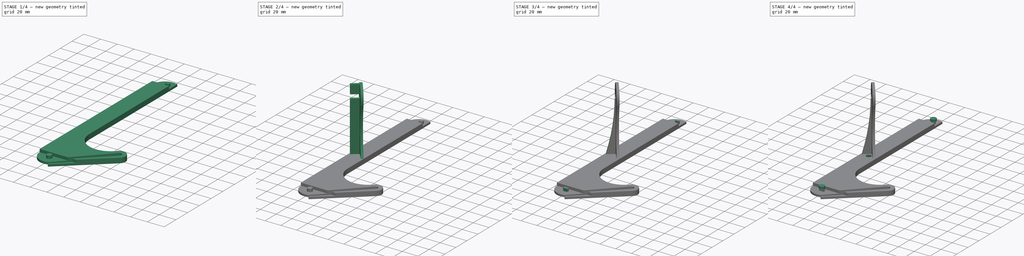
[diagram: build sequence overview — one tinted view per stage of 4, left to right]
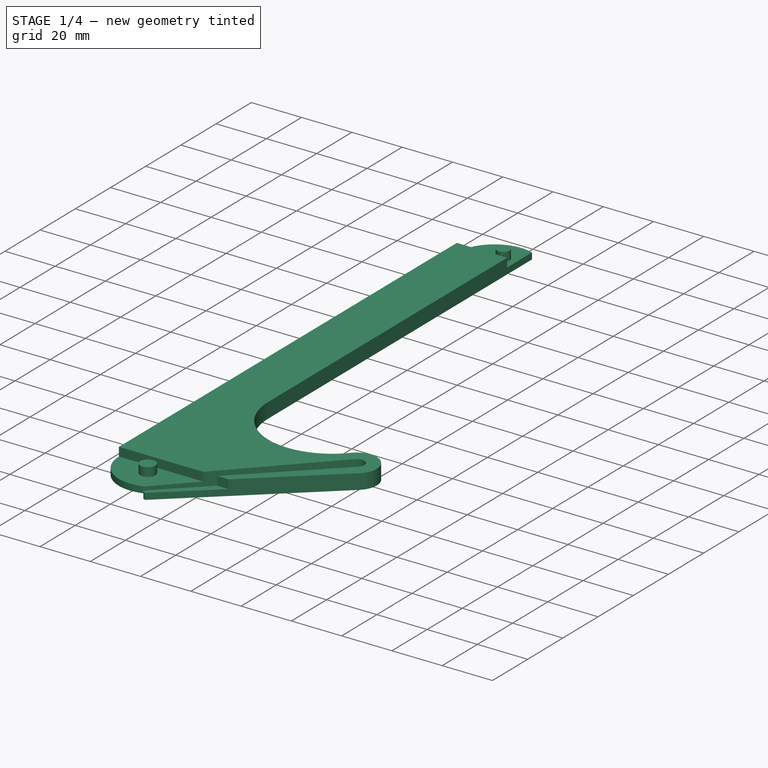
[diagram: stage 1 of 4 — iso view after this stage's code; geometry added in this stage tinted green]
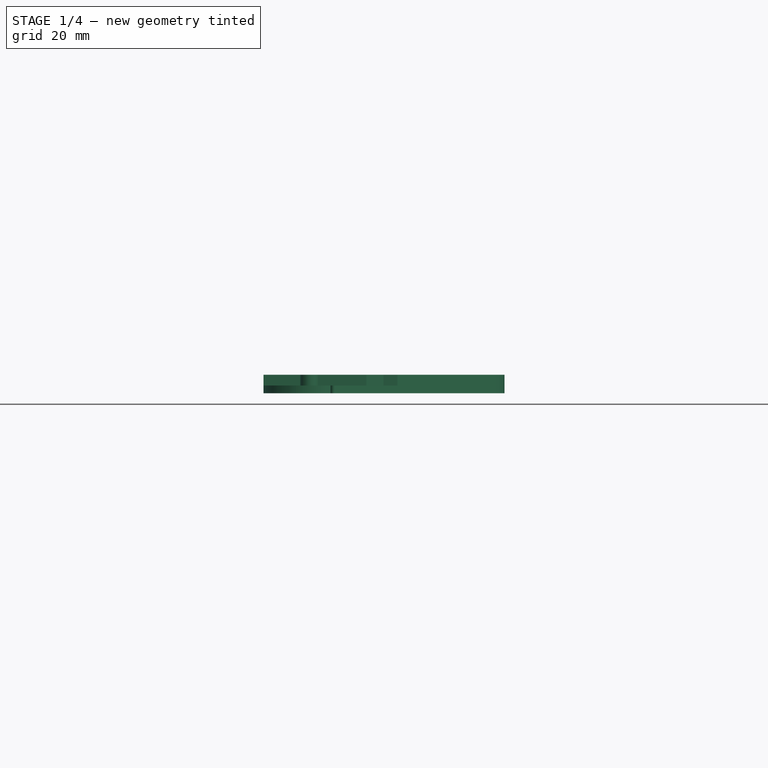
[diagram: stage 1 of 4 — front view after this stage's code; geometry added in this stage tinted green]
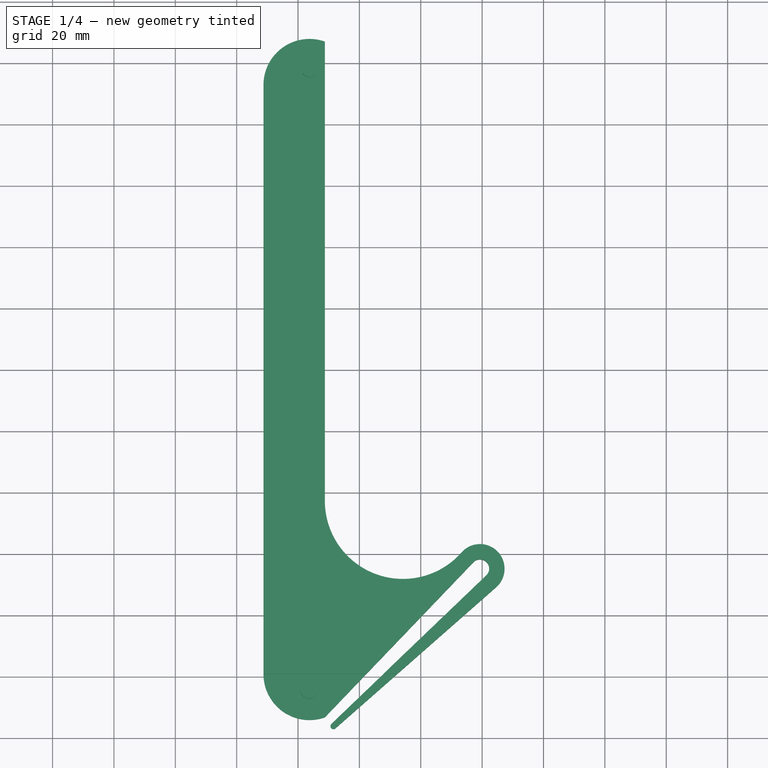
[diagram: stage 1 of 4 — top view after this stage's code; geometry added in this stage tinted green]
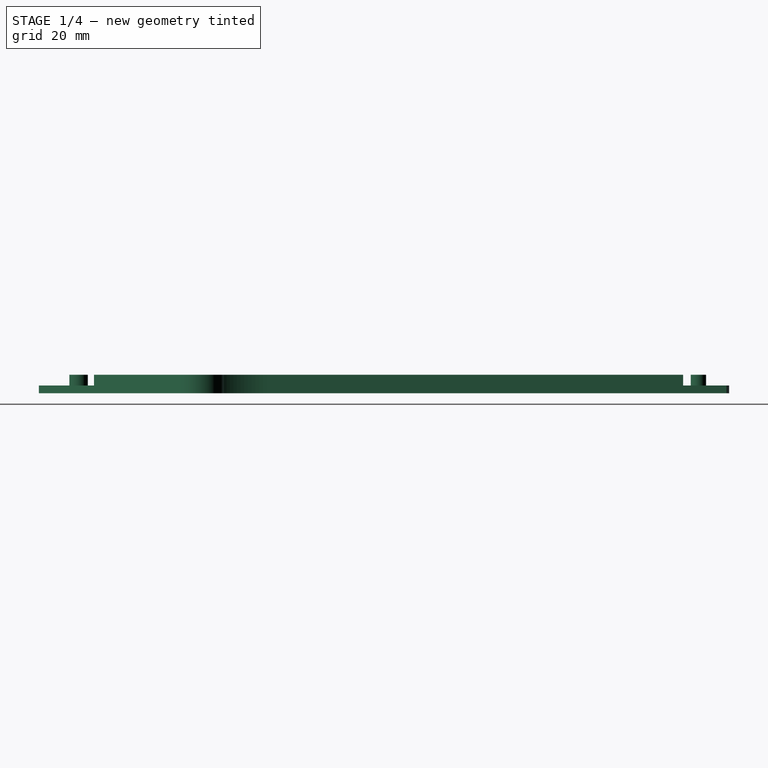
[diagram: stage 1 of 4 — right view after this stage's code; geometry added in this stage tinted green]
FCSTD DOCUMENT  (FreeCAD 0.16R6707 (Git))
Label: montant_avd
License: All rights reserved
LicenseURL: http://en.wikipedia.org/wiki/All_rights_reserved
objects: Sketcher::SketchObject×12, PartDesign::Pocket×8, PartDesign::Pad×4
note: 36 computed .brp shape members not serialized (recipe doc carries the construction recipe); baked Part::Feature solids carry a one-line shape summary decoded from their .brp

FEATURE [Sketcher::SketchObject] Sketch
  sketch-geometry (17):
    g0: LineSegment StartX=148.736 StartY=-99.0647 StartZ=0 EndX=148.736 EndY=92.9353 EndZ=0
    g1: LineSegment StartX=168.736 StartY=-113.207 StartZ=0 EndX=217.173 EndY=-62.6487 EndZ=0
    g2: LineSegment StartX=170.857 StartY=-115.328 StartZ=0 EndX=221.415 EndY=-66.8914 EndZ=0
    g3: LineSegment [constr] StartX=169.797 StartY=-114.268 StartZ=0 EndX=219.294 EndY=-64.77 EndZ=0
    g4: LineSegment [constr] StartX=217.173 StartY=-62.6487 StartZ=0 EndX=221.415 EndY=-66.8914 EndZ=0
    g5: ArcOfCircle CenterX=194.175 CenterY=-42.6963 CenterZ=0 NormalX=0 NormalY=0 NormalZ=1 Radius=25.4395 StartAngle=3.14159 EndAngle=5.56222
    g6: LineSegment [constr] StartX=168.736 StartY=-42.6964 StartZ=0 EndX=168.736 EndY=-113.207 EndZ=0
    g7: LineSegment StartX=172.272 StartY=-116.742 StartZ=0 EndX=224.575 EndY=-70.7794 EndZ=0
    g8: ArcOfCircle CenterX=219.294 CenterY=-64.77 CenterZ=0 NormalX=0 NormalY=0 NormalZ=1 Radius=3 StartAngle=5.49779 EndAngle=8.63938
    g9: LineSegment StartX=168.736 StartY=-42.6964 StartZ=0 EndX=168.736 EndY=107.077 EndZ=0
    g10: ArcOfCircle CenterX=163.736 CenterY=92.9353 CenterZ=0 NormalX=0 NormalY=0 NormalZ=1 Radius=15 StartAngle=1.23096 EndAngle=3.14159
    g11: LineSegment [constr] StartX=168.736 StartY=-113.207 StartZ=0 EndX=172.272 EndY=-116.742 EndZ=0
    g12: ArcOfCircle CenterX=171.564 CenterY=-116.035 CenterZ=0 NormalX=0 NormalY=0 NormalZ=1 Radius=1 StartAngle=2.35619 EndAngle=5.49779
    g13: ArcOfCircle CenterX=219.294 CenterY=-64.77 CenterZ=0 NormalX=0 NormalY=0 NormalZ=1 Radius=8 StartAngle=5.43335 EndAngle=8.70381
    g14: LineSegment [constr] StartX=148.736 StartY=92.9353 StartZ=0 EndX=168.736 EndY=92.9353 EndZ=0
    g15: LineSegment [constr] StartX=148.736 StartY=-99.0647 StartZ=0 EndX=168.736 EndY=-99.0647 EndZ=0
    g16: ArcOfCircle CenterX=163.736 CenterY=-99.0647 CenterZ=0 NormalX=0 NormalY=0 NormalZ=1 Radius=15 StartAngle=3.14159 EndAngle=5.05223
  constraints (51):
    c: Coincident(g2,g4)
    c: Coincident(g1,g4)
    c: Coincident(g1,g8)
    c: Coincident(g2,g8)
    c: Coincident(g1,g6)
    c: Coincident(g0,g10)
    c: Coincident(g9,g10)
    c: Parallel(g6,g0)
    c: Parallel(g9,g0)
    c: Parallel(g0,g-2)
    c: Symmetric(g2,g1,g3)
    c: Symmetric(g1,g2,g3)
    c: PointOnObject(g3,g4)
    c: Radius(g8) = 3
    c: Coincident(g7,g11)
    c: Coincident(g1,g11)
    c: Distance(g2,g1) = 3
    c: PointOnObject(g2,g11)
    c: Coincident(g12,g7)
    c: Coincident(g12,g2)
    c: PointOnObject(g12,g11)
    c: Radius(g12) = 1
    c: Coincident(g5,g6)
    c: Coincident(g5,g9)
    c: Coincident(g13,g3)
    c: Coincident(g13,g5)
    c: Coincident(g13,g7)
    c: Radius(g13) = 8
    c: PointOnObject(g8,g4)
    c: Angle(g10,g9) = 1.5708
    c: PointOnObject(g3,g11)
    c: Distance(g3) = 70
    c: Angle(g3,g6) = 0.785398
    c: Coincident(g0,g14)
    c: PointOnObject(g14,g9)
    c: PointOnObject(g10,g14)
    c: Angle(g14,g9) = 1.5708
    c: Distance(g14) = 20
    c: Coincident(g0,g15)
    c: Distance(g15) = 20
    c: Coincident(g16,g0)
    c: Coincident(g16,g1)
    c: PointOnObject(g16,g15)
    c: DistanceX(g16,g15) = 5
    c: DistanceX(g10,g14) = 5
    c: PointOnObject(g15,g6)
    c: Tangent(g7,g13)
    c: Tangent(g13,g5)
    c: Tangent(g5,g9)
    c: Symmetric(g5,g7,g3)
    c: DistanceY(g0,g0) = 192
FEATURE [PartDesign::Pad] Pad
  Length = 6
  Length2 = 100
  Sketch = -> Sketch
  Type = 0
FEATURE [Sketcher::SketchObject] Sketch001
  ExternalGeometry = -> [Pad]
  Placement = pos=(0,0,6) rot=(0,0,1;0rad)
  Support = -> Pad [Face13]
  sketch-geometry (5):
    g0: Circle CenterX=163.736 CenterY=97.9353 CenterZ=0 NormalX=0 NormalY=0 NormalZ=1 Radius=2.5
    g1: LineSegment StartX=143.825 StartY=111.204 StartZ=0 EndX=175.168 EndY=111.204 EndZ=0
    g2: LineSegment StartX=175.168 StartY=111.204 StartZ=0 EndX=175.168 EndY=92.9353 EndZ=0
    g3: LineSegment StartX=175.168 StartY=92.9353 StartZ=0 EndX=143.825 EndY=92.9353 EndZ=0
    g4: LineSegment StartX=143.825 StartY=92.9353 StartZ=0 EndX=143.825 EndY=111.204 EndZ=0
  constraints (12):
    c: Radius(g0) = 2.5
    c: Coincident(g1,g2)
    c: Coincident(g2,g3)
    c: Coincident(g3,g4)
    c: Coincident(g4,g1)
    c: Horizontal(g1)
    c: Horizontal(g3)
    c: Vertical(g2)
    c: Vertical(g4)
    c: PointOnObject(g-3,g3)
    c: DistanceY(g-3,g0) = 5
    c: DistanceX(g0,g-4) = 5
FEATURE [PartDesign::Pocket] Pocket
  Length = 3.5
  Sketch = -> Sketch001
  Type = 0
FEATURE [Sketcher::SketchObject] Sketch013
  ExternalGeometry = -> [Pocket]
  Placement = pos=(0,0,6) rot=(0,0,1;0rad)
  Support = -> Pocket [Face4]
  sketch-geometry (5):
    g0: LineSegment StartX=145.277 StartY=-99.0647 StartZ=0 EndX=193.441 EndY=-99.0647 EndZ=0
    g1: LineSegment StartX=193.441 StartY=-99.0647 StartZ=0 EndX=193.441 EndY=-118.391 EndZ=0
    g2: LineSegment StartX=193.441 StartY=-118.391 StartZ=0 EndX=145.277 EndY=-118.391 EndZ=0
    g3: LineSegment StartX=145.277 StartY=-118.391 StartZ=0 EndX=145.277 EndY=-99.0647 EndZ=0
    g4: Circle CenterX=163.736 CenterY=-104.065 CenterZ=0 NormalX=0 NormalY=0 NormalZ=1 Radius=3.0214
  constraints (11):
    c: Coincident(g0,g1)
    c: Coincident(g1,g2)
    c: Coincident(g2,g3)
    c: Coincident(g3,g0)
    c: Horizontal(g0)
    c: Horizontal(g2)
    c: Vertical(g1)
    c: Vertical(g3)
    c: PointOnObject(g-3,g0)
    c: DistanceY(g4,g-3) = 5
    c: DistanceX(g4,g-3) = 5
FEATURE [PartDesign::Pocket] Pocket008
  Length = 3.5
  Sketch = -> Sketch013
  Type = 0
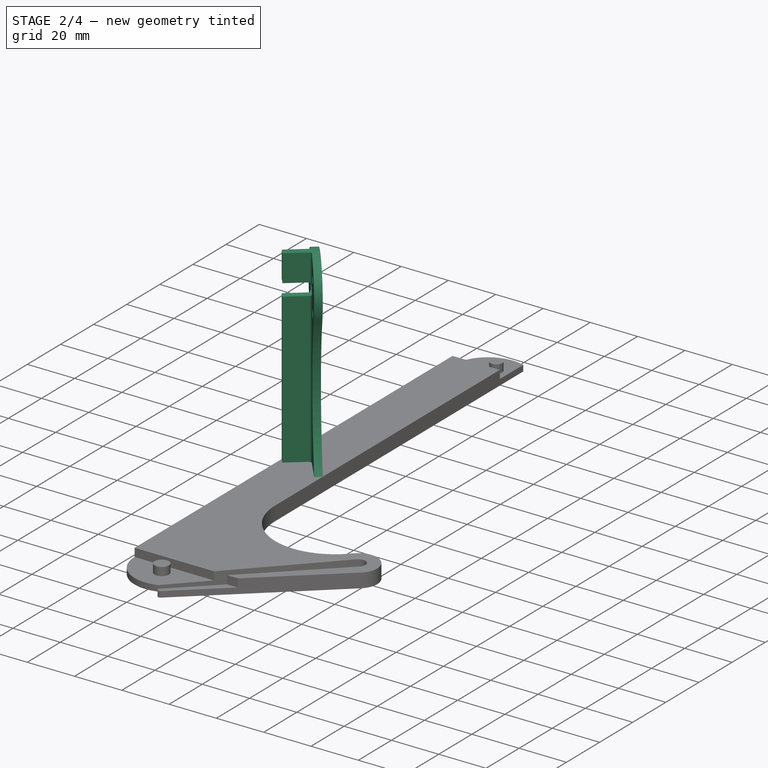
[diagram: stage 2 of 4 — iso view after this stage's code; geometry added in this stage tinted green]
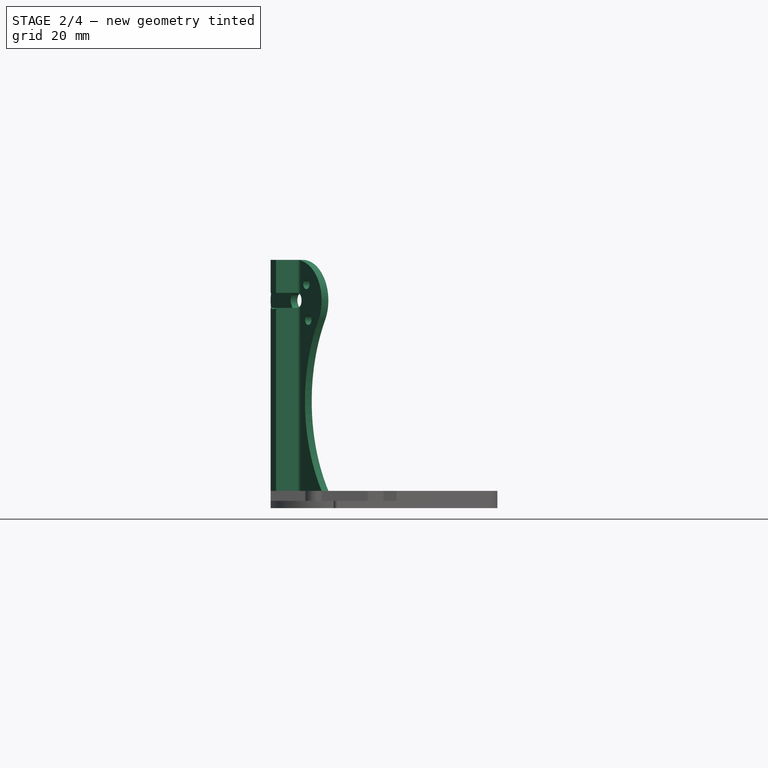
[diagram: stage 2 of 4 — front view after this stage's code; geometry added in this stage tinted green]
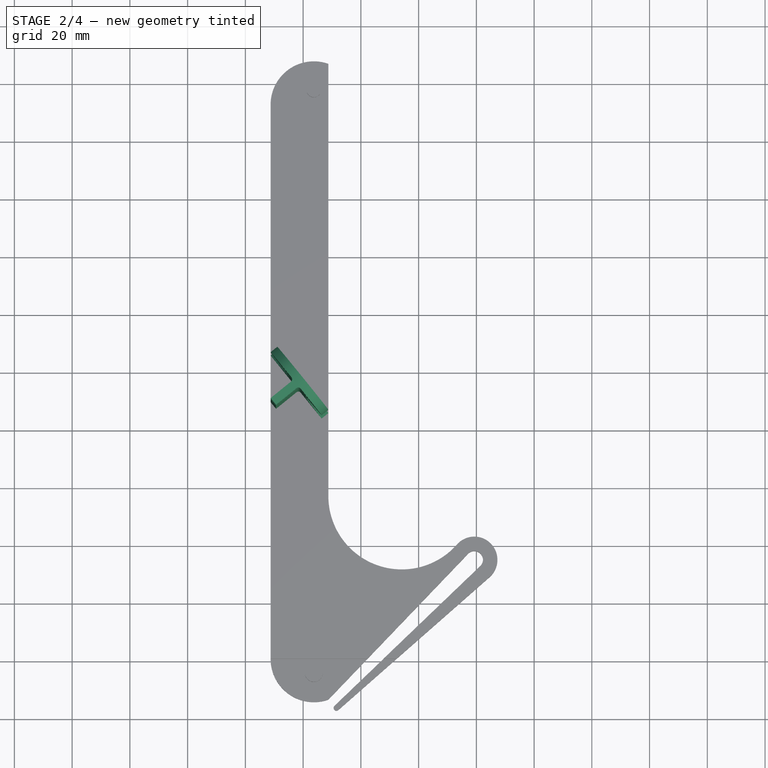
[diagram: stage 2 of 4 — top view after this stage's code; geometry added in this stage tinted green]
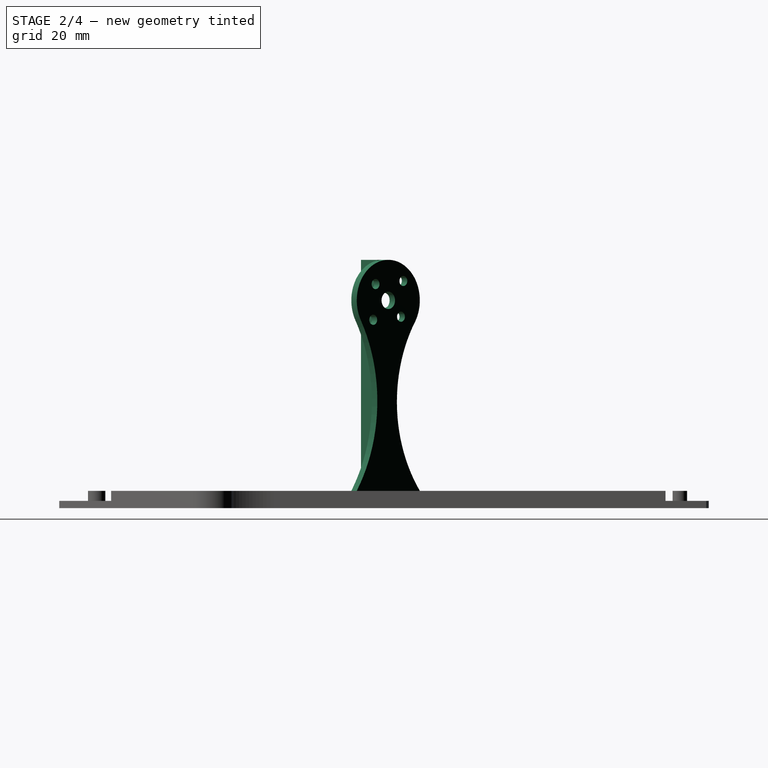
[diagram: stage 2 of 4 — right view after this stage's code; geometry added in this stage tinted green]
FEATURE [Sketcher::SketchObject] Sketch014
  ExternalGeometry = -> [Pocket008]
  Placement = pos=(0,0,6) rot=(0,0,1;0rad)
  Support = -> Pocket008 [Face4]
  sketch-geometry (11):
    g0: LineSegment StartX=148.736 StartY=5.96021 StartZ=0 EndX=155.997 EndY=-3.00921 EndZ=0
    g1: LineSegment StartX=151.068 StartY=7.84783 StartZ=0 EndX=168.736 EndY=-13.9772 EndZ=0
    g2: LineSegment StartX=148.736 StartY=5.96021 StartZ=0 EndX=151.068 EndY=7.84783 EndZ=0
    g3: LineSegment StartX=166.404 StartY=-15.8648 StartZ=0 EndX=168.736 EndY=-13.9772 EndZ=0
    g4: LineSegment [constr] StartX=148.736 StartY=-12.1039 StartZ=0 EndX=159.902 EndY=-3.06468 EndZ=0
    g5: LineSegment StartX=148.736 StartY=-10.174 StartZ=0 EndX=150.624 EndY=-12.5057 EndZ=0
    g6: LineSegment StartX=150.624 StartY=-12.5057 StartZ=0 EndX=157.737 EndY=-6.74736 EndZ=0
    g7: LineSegment StartX=148.736 StartY=-10.174 StartZ=0 EndX=155.849 EndY=-4.41565 EndZ=0
    g8: LineSegment StartX=159.143 StartY=-6.89539 StartZ=0 EndX=166.404 EndY=-15.8648 EndZ=0
    g9: ArcOfCircle CenterX=158.366 CenterY=-7.5246 CenterZ=0 NormalX=0 NormalY=0 NormalZ=1 Radius=1 StartAngle=0.680533 EndAngle=2.25133
    g10: ArcOfCircle CenterX=155.22 CenterY=-3.63841 CenterZ=0 NormalX=0 NormalY=0 NormalZ=1 Radius=1 StartAngle=5.39292 EndAngle=6.96372
  constraints (28):
    c: Coincident(g2,g0)
    c: Coincident(g2,g1)
    c: Coincident(g3,g8)
    c: Coincident(g3,g1)
    c: PointOnObject(g4,g-3)
    c: PointOnObject(g0,g-3)
    c: PointOnObject(g1,g-4)
    c: Angle(g8,g4) = 1.5708
    c: Symmetric(g1,g1,g4)
    c: Angle(g3,g8) = 1.5708
    c: Distance(g3) = 3
    c: PointOnObject(g5,g-3)
    c: Coincident(g5,g6)
    c: Coincident(g5,g7)
    c: Symmetric(g5,g5,g4)
    c: Parallel(g7,g6)
    c: Distance(g5,g5) = 3
    c: Tangent(g0,g8)
    c: Tangent(g6,g9) = 1.5708
    c: Tangent(g8,g9) = 1.5708
    c: Tangent(g0,g10) = 1.5708
    c: Tangent(g7,g10) = -1.5708
    c: Symmetric(g6,g7,g4)
    c: Radius(g9) = 1
    c: Radius(g10) = 1
    c: PointOnObject(g4,g1)
    c: Symmetric(g0,g3,g4)
    c: DistanceY(g4,g-3) = 96
FEATURE [PartDesign::Pad] Pad001
  Length = 80
  Length2 = 100
  Sketch = -> Sketch014
  Type = 0
FEATURE [Sketcher::SketchObject] Sketch016
  ExternalGeometry = -> [Pad001]
  Placement = pos=(95.0977,76.9856,0) rot=(0.319639,0.670012,0.670012;2.52284rad)
  Support = -> Pad001 [Face31]
  sketch-geometry (8):
    g0: ArcOfCircle CenterX=-102.993 CenterY=71.9599 CenterZ=0 NormalX=0 NormalY=0 NormalZ=1 Radius=14.0401 StartAngle=5.76124 EndAngle=9.94673
    g1: ArcOfCircle CenterX=-47.5079 CenterY=36.8237 CenterZ=0 NormalX=0 NormalY=0 NormalZ=1 Radius=51.6509 StartAngle=2.56552 EndAngle=3.78106
    g2: ArcOfCircle CenterX=-165.033 CenterY=37.0315 CenterZ=0 NormalX=0 NormalY=0 NormalZ=1 Radius=57.1569 StartAngle=5.70928 EndAngle=6.7937
    g3: LineSegment StartX=-117.033 StartY=6 StartZ=0 EndX=-129.947 EndY=10.191 EndZ=0
    g4: LineSegment StartX=-129.947 StartY=10.191 StartZ=0 EndX=-129.947 EndY=98.7164 EndZ=0
    g5: LineSegment StartX=-129.947 StartY=98.7164 StartZ=0 EndX=-69.304 EndY=98.7164 EndZ=0
    g6: LineSegment StartX=-69.304 StartY=98.7164 StartZ=0 EndX=-45.8669 EndY=9.8803 EndZ=0
    g7: LineSegment StartX=-45.8669 StartY=9.8803 StartZ=0 EndX=-88.9532 EndY=6 EndZ=0
  constraints (15):
    c: Coincident(g0,g1)
    c: Tangent(g0,g-5)
    c: Tangent(g0,g-4)
    c: Tangent(g0,g-3)
    c: Coincident(g0,g2)
    c: Coincident(g1,g7)
    c: Coincident(g1,g-3)
    c: Coincident(g5,g6)
    c: Coincident(g6,g7)
    c: Coincident(g4,g5)
    c: Coincident(g3,g4)
    c: Coincident(g2,g3)
    c: Coincident(g2,g-4)
    c: DistanceY(g0,g0) = 7
    c: DistanceY(g0,g0) = 7
FEATURE [PartDesign::Pocket] Pocket009
  Length = 3
  Sketch = -> Sketch016
  Type = 0
FEATURE [Sketcher::SketchObject] Sketch015
  ExternalGeometry = -> [Pocket009]
  Placement = pos=(95.0977,76.9856,0) rot=(0.319639,0.670012,0.670012;2.52284rad)
  Support = -> Pocket009 [Face34]
  sketch-geometry (9):
    g0: Circle CenterX=-102.993 CenterY=71.9599 CenterZ=0 NormalX=0 NormalY=0 NormalZ=1 Radius=3
    g1: Circle CenterX=-96.2758 CenterY=78.6774 CenterZ=0 NormalX=0 NormalY=0 NormalZ=1 Radius=1.75
    g2: Circle CenterX=-108.65 CenterY=77.6167 CenterZ=0 NormalX=0 NormalY=0 NormalZ=1 Radius=1.75
    g3: Circle CenterX=-109.711 CenterY=65.2424 CenterZ=0 NormalX=0 NormalY=0 NormalZ=1 Radius=1.75
    g4: Circle CenterX=-97.3365 CenterY=66.303 CenterZ=0 NormalX=0 NormalY=0 NormalZ=1 Radius=1.75
    g5: LineSegment [constr] StartX=-109.711 StartY=65.2424 StartZ=0 EndX=-96.2758 EndY=78.6774 EndZ=0
    g6: LineSegment [constr] StartX=-108.65 StartY=77.6167 StartZ=0 EndX=-97.3365 EndY=66.303 EndZ=0
    g7: LineSegment [constr] StartX=-117.033 StartY=71.9599 StartZ=0 EndX=-102.993 EndY=71.9599 EndZ=0
    g8: LineSegment [constr] StartX=-102.993 StartY=86 StartZ=0 EndX=-102.993 EndY=71.9599 EndZ=0
  constraints (24):
    c: Coincident(g6,g2)
    c: PointOnObject(g0,g6)
    c: PointOnObject(g0,g5)
    c: Coincident(g3,g5)
    c: Coincident(g6,g4)
    c: Coincident(g1,g5)
    c: Distance(g0,g3) = 9.5
    c: Distance(g4,g0) = 8
    c: Distance(g2,g0) = 8
    c: Distance(g1,g0) = 9.5
    c: Angle(g5,g6) = 1.5708
    c: Radius(g0) = 3
    c: Radius(g4) = 1.75
    c: Radius(g3) = 1.75
    c: Radius(g2) = 1.75
    c: Radius(g1) = 1.75
    c: Coincident(g-3,g0)
    c: Horizontal(g7)
    c: Vertical(g8)
    c: Coincident(g8,g0)
    c: Coincident(g8,g-3)
    c: Coincident(g7,g0)
    c: Coincident(g7,g-3)
    c: Angle(g7,g5) = 0.785398
FEATURE [PartDesign::Pocket] Pocket010
  Length = 5
  Sketch = -> Sketch015
  Type = 1
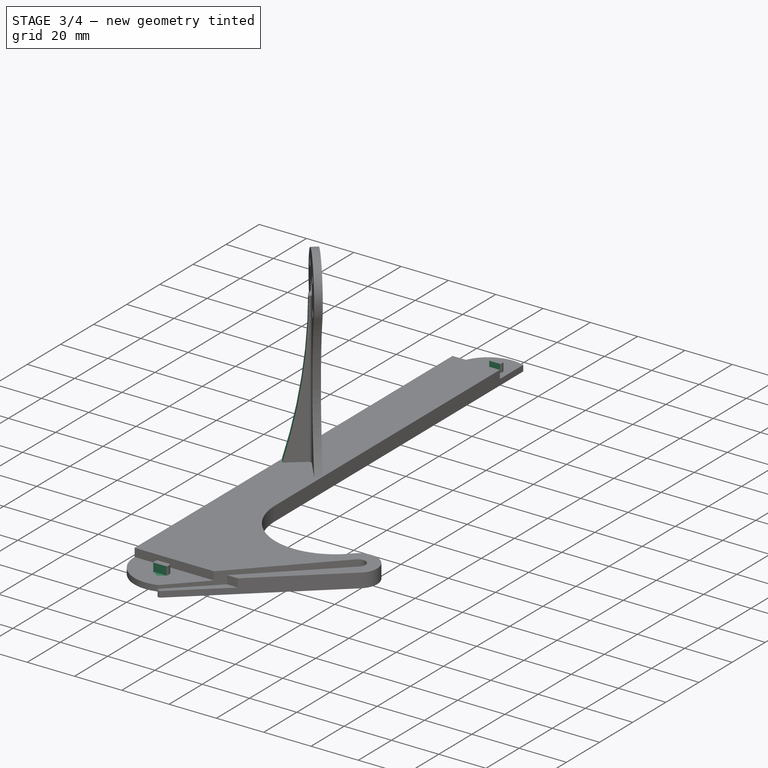
[diagram: stage 3 of 4 — iso view after this stage's code; geometry added in this stage tinted green]
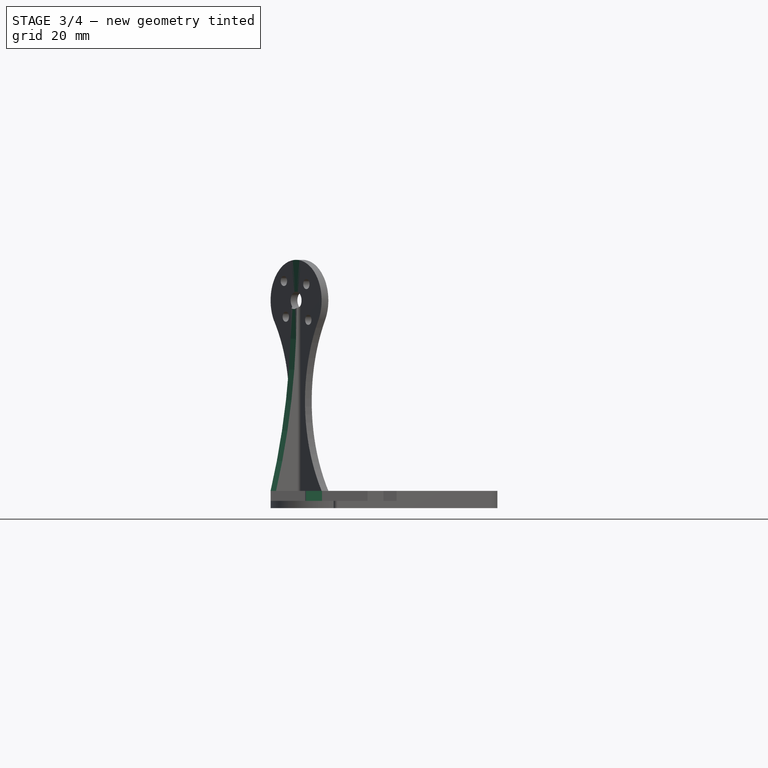
[diagram: stage 3 of 4 — front view after this stage's code; geometry added in this stage tinted green]
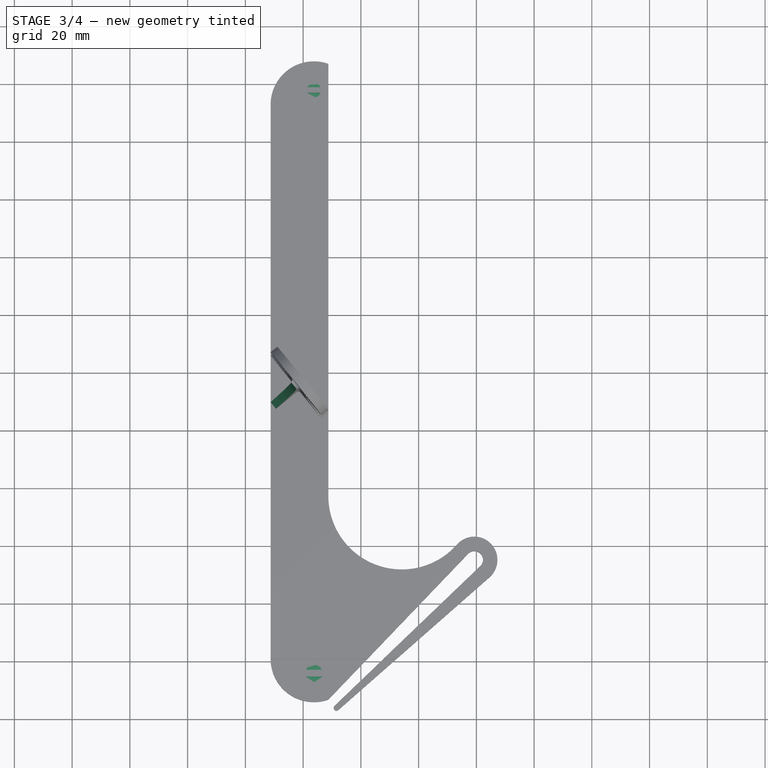
[diagram: stage 3 of 4 — top view after this stage's code; geometry added in this stage tinted green]
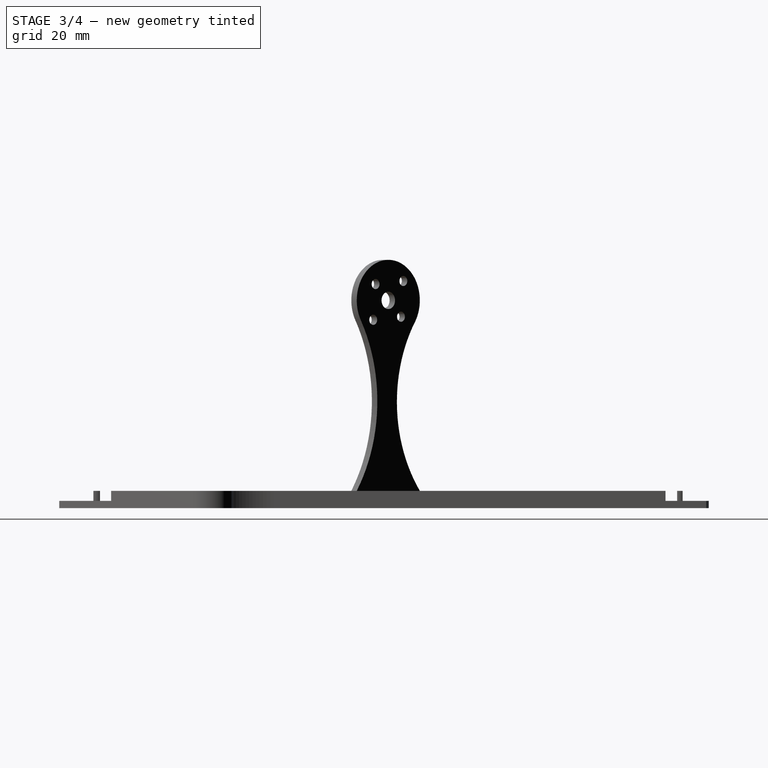
[diagram: stage 3 of 4 — right view after this stage's code; geometry added in this stage tinted green]
FEATURE [Sketcher::SketchObject] Sketch017
  ExternalGeometry = -> [Pocket010]
  Placement = pos=(63.8603,-78.8845,0) rot=(-0.242848,0.685939,0.685939;3.61806rad)
  Support = -> Pocket010 [Face30]
  sketch-geometry (5):
    g0: ArcOfCircle CenterX=105.564 CenterY=69.3618 CenterZ=0 NormalX=0 NormalY=0 NormalZ=1 Radius=223.917 StartAngle=3.14159 EndAngle=3.42848
    g1: LineSegment StartX=-118.353 StartY=69.3618 StartZ=0 EndX=-119.353 EndY=73.6182 EndZ=0
    g2: LineSegment StartX=-119.353 StartY=73.6182 StartZ=0 EndX=-119.353 EndY=97.3156 EndZ=0
    g3: LineSegment StartX=-119.353 StartY=97.3156 StartZ=0 EndX=-98.8023 EndY=97.3156 EndZ=0
    g4: LineSegment StartX=-98.8023 StartY=97.3156 StartZ=0 EndX=-109.202 EndY=6 EndZ=0
  constraints (7):
    c: Coincident(g1,g0)
    c: Coincident(g2,g1)
    c: Vertical(g2)
    c: Coincident(g3,g2)
    c: Horizontal(g3)
    c: Coincident(g4,g3)
    c: Coincident(g4,g0)
FEATURE [PartDesign::Pocket] Pocket011
  Length = 11
  Midplane = true
  Sketch = -> Sketch017
  Type = 0
FEATURE [Sketcher::SketchObject] Sketch020
  ExternalGeometry = -> [Pocket011]
  Placement = pos=(0,0,6) rot=(0,0,1;0rad)
  Support = -> Pocket011 [Face47]
  sketch-geometry (6):
    g0: ArcOfCircle CenterX=163.736 CenterY=97.9353 CenterZ=0 NormalX=0 NormalY=0 NormalZ=1 Radius=2.5 StartAngle=0.392699 EndAngle=2.74889
    g1: ArcOfCircle CenterX=163.736 CenterY=97.9353 CenterZ=0 NormalX=0 NormalY=0 NormalZ=1 Radius=2.5 StartAngle=3.53429 EndAngle=5.89049
    g2: LineSegment StartX=161.426 StartY=98.892 StartZ=0 EndX=166.046 EndY=98.892 EndZ=0
    g3: LineSegment StartX=161.426 StartY=96.9786 StartZ=0 EndX=166.046 EndY=96.9786 EndZ=0
    g4: LineSegment [constr] StartX=161.426 StartY=98.892 StartZ=0 EndX=163.736 EndY=97.9353 EndZ=0
    g5: LineSegment [constr] StartX=161.426 StartY=96.9786 StartZ=0 EndX=163.736 EndY=97.9353 EndZ=0
  constraints (16):
    c: Horizontal(g2)
    c: Horizontal(g3)
    c: Coincident(g2,g0)
    c: Coincident(g2,g0)
    c: Coincident(g1,g3)
    c: Coincident(g1,g3)
    c: Coincident(g1,g0)
    c: Coincident(g0,g4)
    c: Coincident(g0,g5)
    c: Coincident(g0,g4)
    c: Coincident(g1,g5)
    c: Angle(g4,g5) = 0.785398
    c: Coincident(g0,g-3)
    c: PointOnObject(g1,g-3)
    c: PointOnObject(g0,g-3)
    c: Angle(g3,g5) = 0.392699
FEATURE [PartDesign::Pocket] Pocket012
  Length = 3.5
  Sketch = -> Sketch020
  Type = 0
FEATURE [Sketcher::SketchObject] Sketch021
  ExternalGeometry = -> [Pocket012]
  Placement = pos=(0,0,6) rot=(0,0,1;0rad)
  Support = -> Pocket012 [Face28]
  sketch-geometry (6):
    g0: ArcOfCircle CenterX=163.736 CenterY=-104.065 CenterZ=0 NormalX=0 NormalY=0 NormalZ=1 Radius=3.0214 StartAngle=0.392699 EndAngle=2.74889
    g1: ArcOfCircle CenterX=163.736 CenterY=-104.065 CenterZ=0 NormalX=0 NormalY=0 NormalZ=1 Radius=3.0214 StartAngle=3.53429 EndAngle=5.89049
    g2: LineSegment StartX=160.945 StartY=-102.908 StartZ=0 EndX=166.527 EndY=-102.908 EndZ=0
    g3: LineSegment StartX=160.945 StartY=-105.221 StartZ=0 EndX=166.527 EndY=-105.221 EndZ=0
    g4: LineSegment [constr] StartX=160.945 StartY=-102.908 StartZ=0 EndX=163.736 EndY=-104.065 EndZ=0
    g5: LineSegment [constr] StartX=160.945 StartY=-105.221 StartZ=0 EndX=163.736 EndY=-104.065 EndZ=0
  constraints (16):
    c: Coincident(g0,g1)
    c: Coincident(g0,g-3)
    c: Horizontal(g2)
    c: Horizontal(g3)
    c: Coincident(g0,g2)
    c: Coincident(g0,g2)
    c: PointOnObject(g0,g-3)
    c: Coincident(g3,g1)
    c: Coincident(g3,g1)
    c: PointOnObject(g1,g-3)
    c: Coincident(g0,g4)
    c: Coincident(g0,g5)
    c: Coincident(g0,g4)
    c: Coincident(g1,g5)
    c: Angle(g4,g5) = 0.785398
    c: Angle(g3,g5) = 0.392699
FEATURE [PartDesign::Pocket] Pocket013
  Length = 3.5
  Sketch = -> Sketch021
  Type = 0
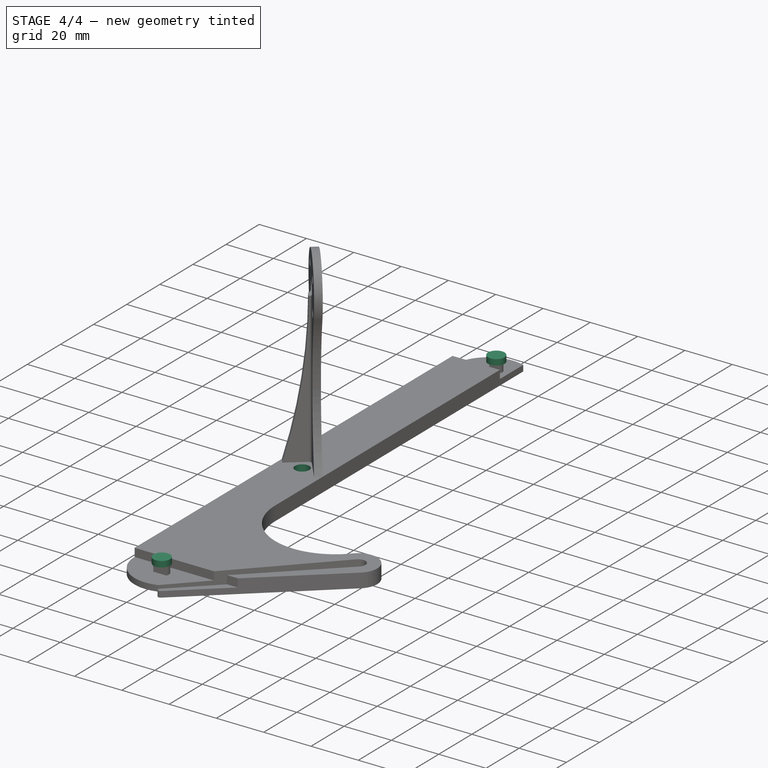
[diagram: stage 4 of 4 — iso view after this stage's code; geometry added in this stage tinted green]
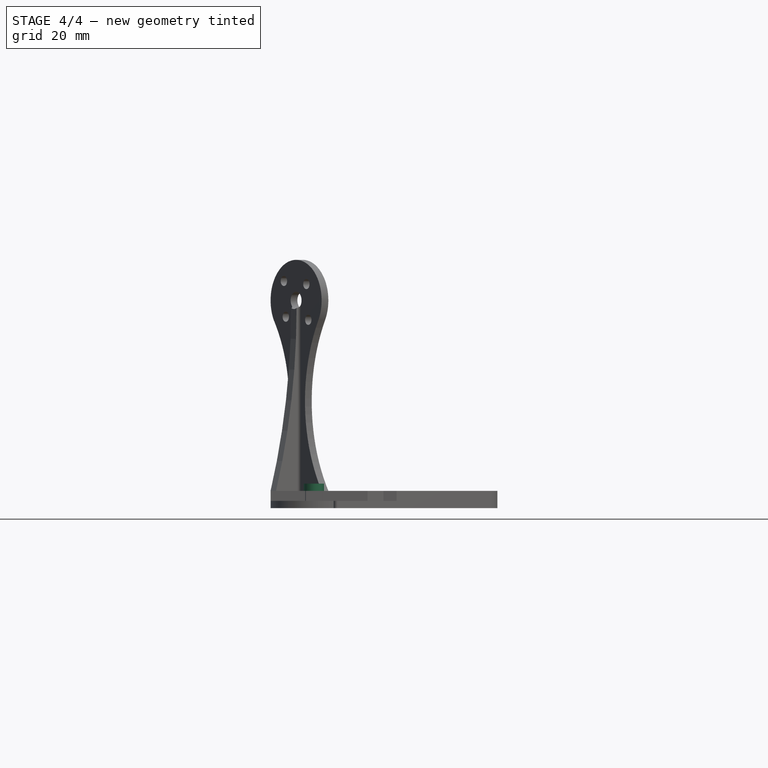
[diagram: stage 4 of 4 — front view after this stage's code; geometry added in this stage tinted green]
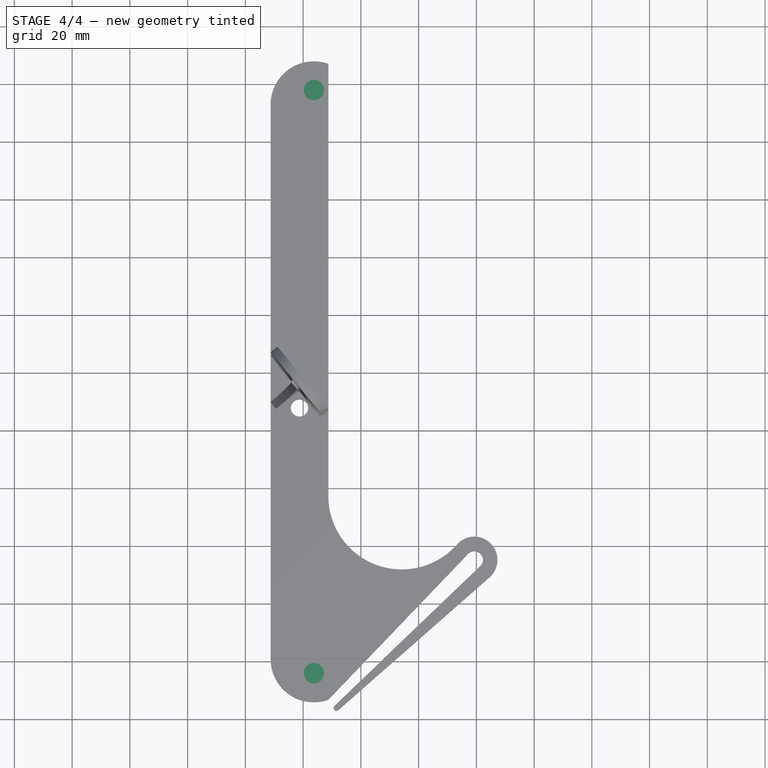
[diagram: stage 4 of 4 — top view after this stage's code; geometry added in this stage tinted green]
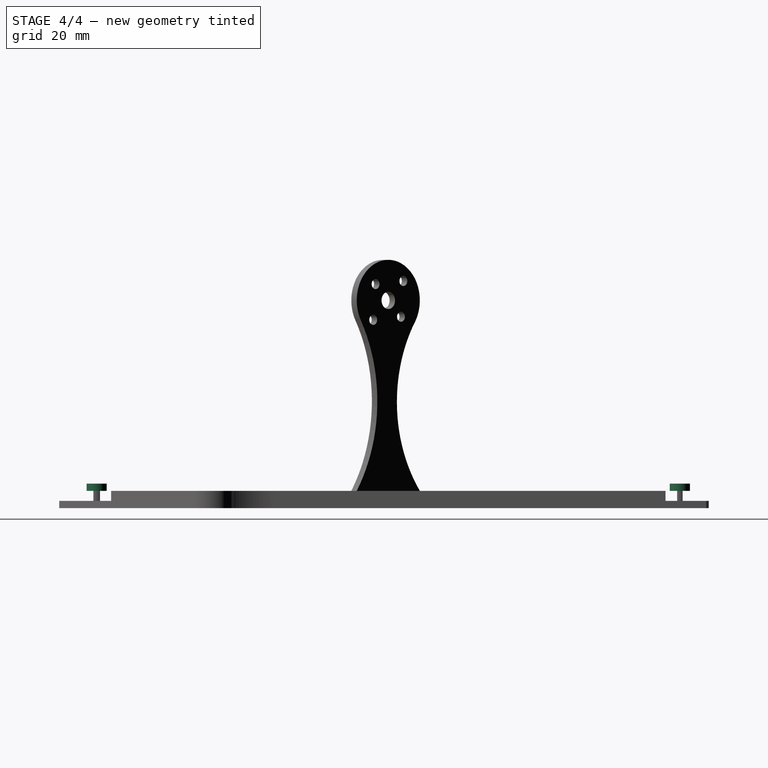
[diagram: stage 4 of 4 — right view after this stage's code; geometry added in this stage tinted green]
FEATURE [Sketcher::SketchObject] Sketch022
  ExternalGeometry = -> [Pocket013]
  Placement = pos=(0,0,6) rot=(0,0,1;0rad)
  Support = -> Pocket013 [Face57]
  sketch-geometry (1):
    g0: Circle CenterX=163.736 CenterY=97.9353 CenterZ=0 NormalX=0 NormalY=0 NormalZ=1 Radius=3.5
  constraints (2):
    c: Coincident(g0,g-3)
    c: Radius(g0) = 3.5
FEATURE [PartDesign::Pad] Pad002
  Length = 2.5
  Length2 = 100
  Sketch = -> Sketch022
  Type = 0
FEATURE [Sketcher::SketchObject] Sketch023
  ExternalGeometry = -> [Pad002]
  Placement = pos=(0,0,6) rot=(0,0,1;0rad)
  Support = -> Pad002 [Face32]
  sketch-geometry (1):
    g0: Circle CenterX=163.736 CenterY=-104.065 CenterZ=0 NormalX=0 NormalY=0 NormalZ=1 Radius=3.5
  constraints (2):
    c: Coincident(g0,g-3)
    c: Radius(g0) = 3.5
FEATURE [PartDesign::Pad] Pad003
  Length = 2.5
  Length2 = 100
  Sketch = -> Sketch023
  Type = 0
FEATURE [Sketcher::SketchObject] Sketch024
  ExternalGeometry = -> [Pad003]
  Placement = pos=(0,0,6) rot=(0,0,1;0rad)
  Support = -> Pad003 [Face6]
  sketch-geometry (1):
    g0: Circle CenterX=158.736 CenterY=-12.174 CenterZ=0 NormalX=0 NormalY=0 NormalZ=1 Radius=3
  constraints (3):
    c: Radius(g0) = 3
    c: DistanceY(g0,g-3) = 2
    c: DistanceX(g-3,g0) = 10
FEATURE [PartDesign::Pocket] Pocket014
  Length = 5
  Sketch = -> Sketch024
  Type = 1
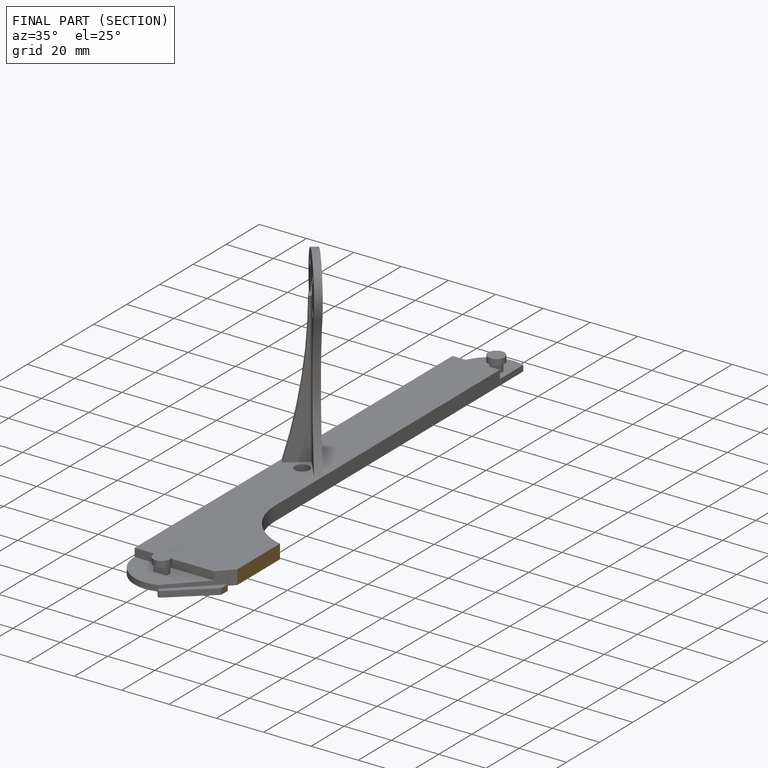
[diagram: finished part — half-section view (interior)]
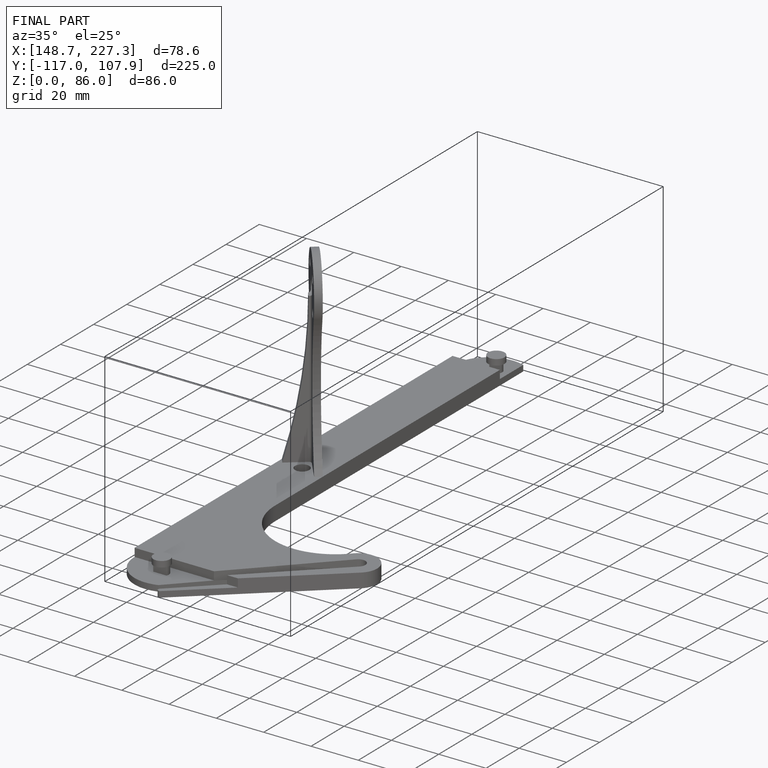
[diagram: finished part — iso view with bounding-box wireframe]
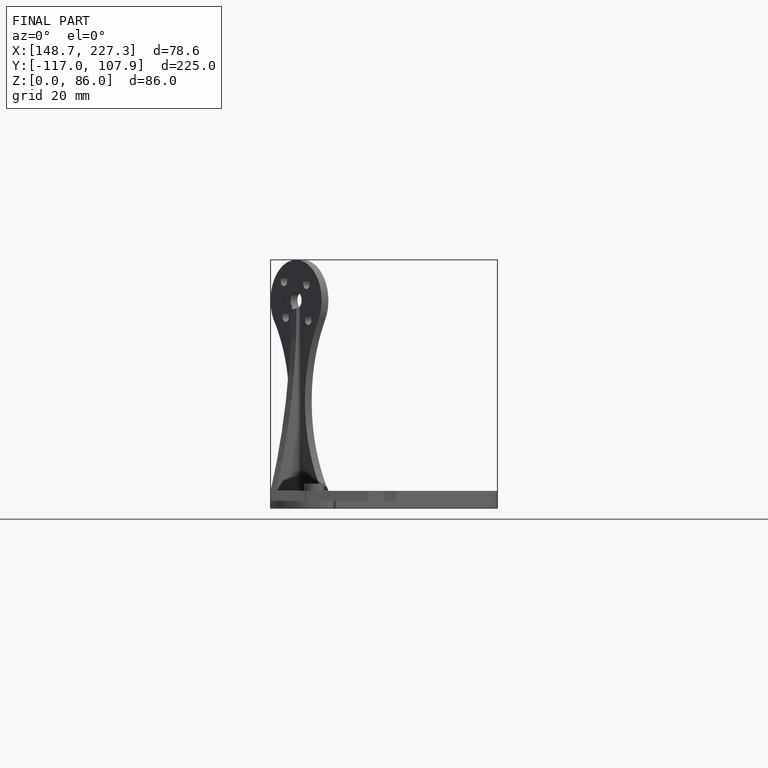
[diagram: finished part — front view with bounding-box wireframe]
